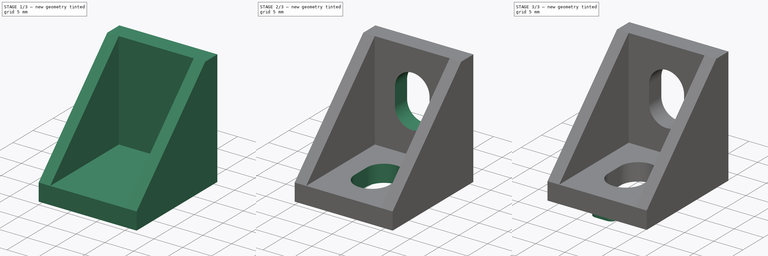
[diagram: build sequence overview — one tinted view per stage of 3, left to right]
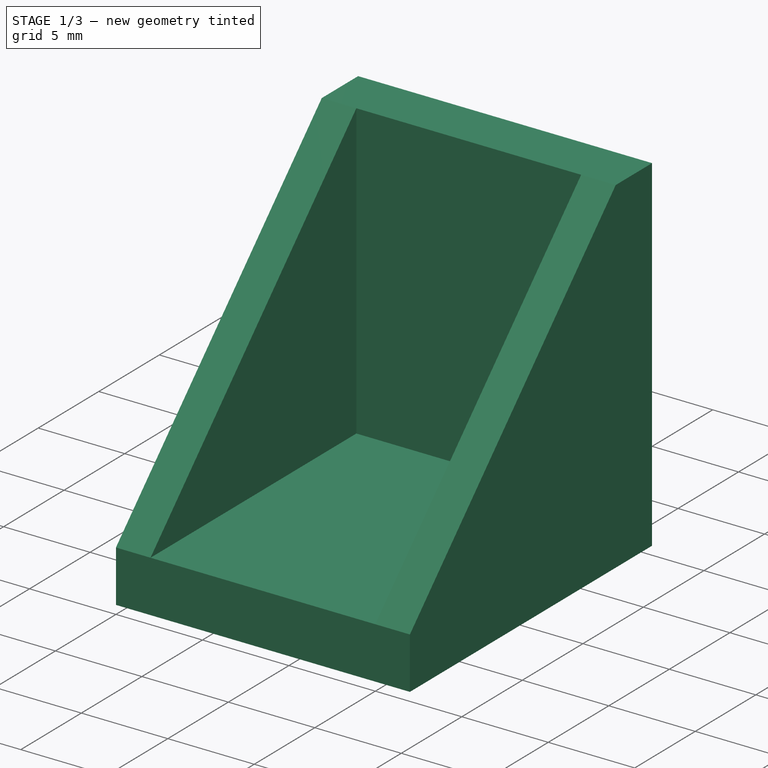
[diagram: stage 1 of 3 — iso view after this stage's code; geometry added in this stage tinted green]
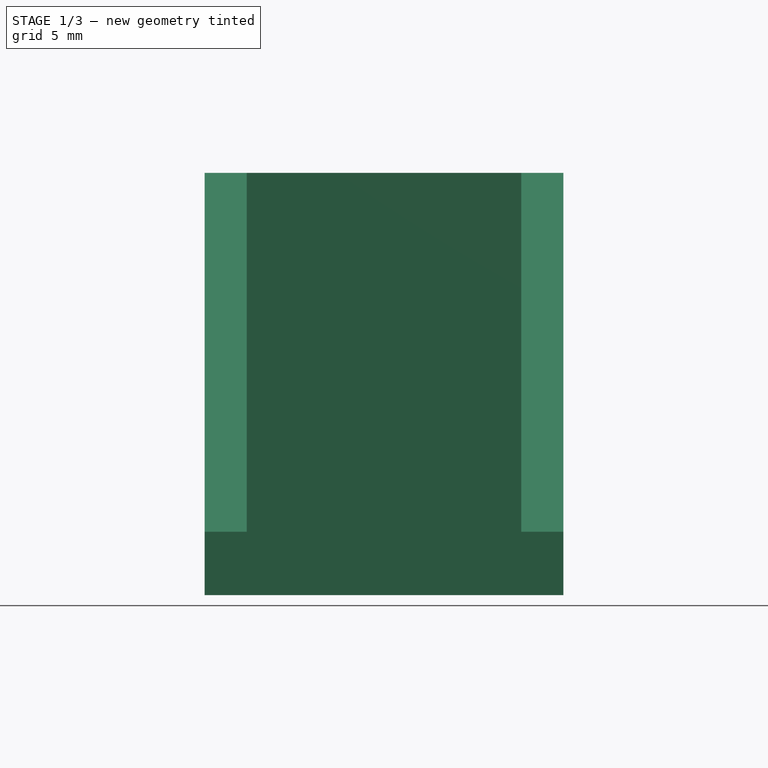
[diagram: stage 1 of 3 — front view after this stage's code; geometry added in this stage tinted green]
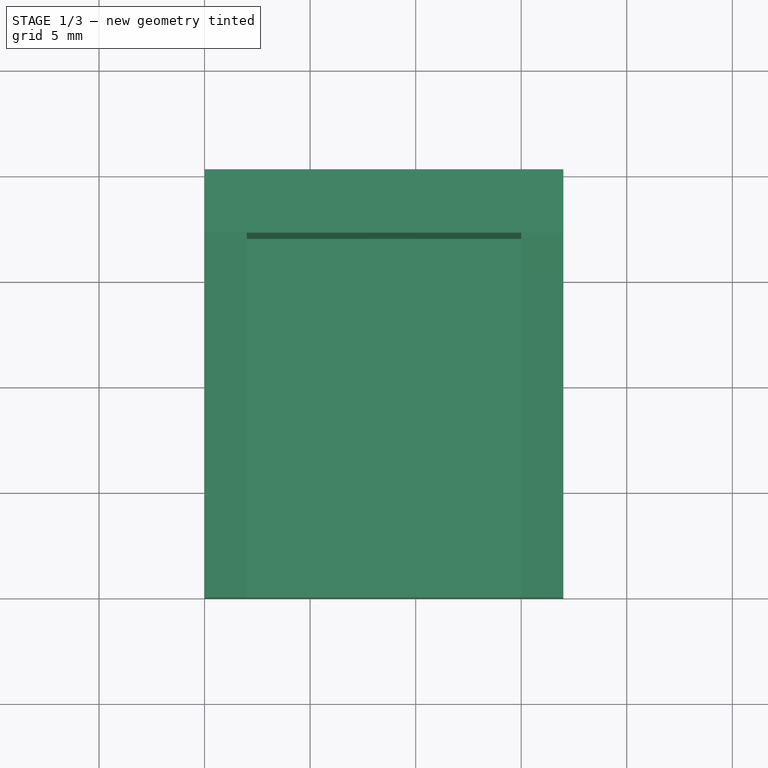
[diagram: stage 1 of 3 — top view after this stage's code; geometry added in this stage tinted green]
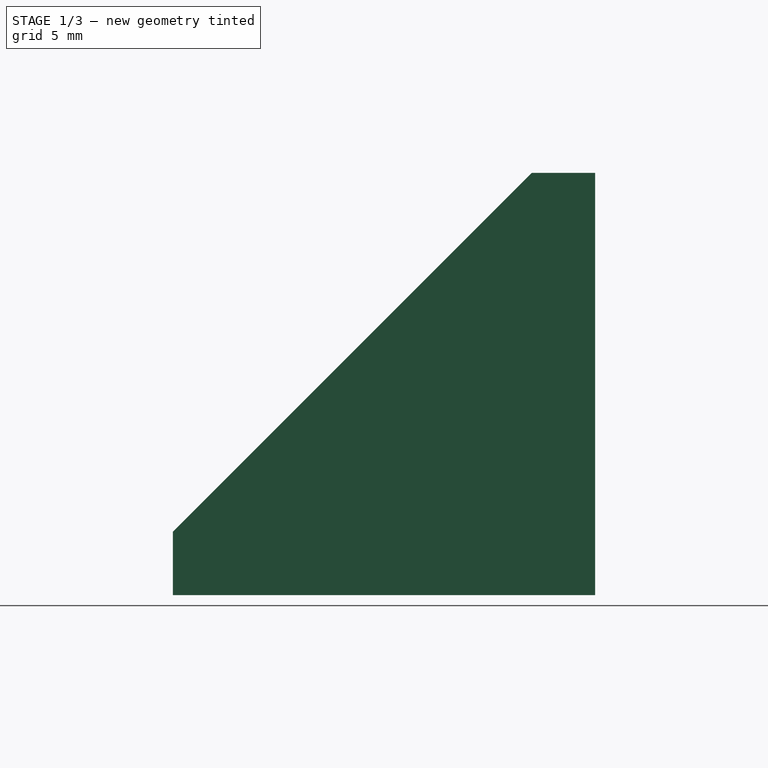
[diagram: stage 1 of 3 — right view after this stage's code; geometry added in this stage tinted green]
FCSTD DOCUMENT  (FreeCAD 0.20R26554 (Git))
Label: 2020_corner_bracket
Comment: This model is licensed under CC-BY 3.0.\n\nDon´t forget to share your modifications with the community.
License: Creative Commons Attribution
LicenseURL: http://creativecommons.org/licenses/by/4.0/
objects: Sketcher::SketchObject×6, PartDesign::Pad×3, PartDesign::Pocket×3, PartDesign::Body×1
note: 19 computed .brp shape members not serialized (recipe doc carries the construction recipe); baked Part::Feature solids carry a one-line shape summary decoded from their .brp

FEATURE [Sketcher::SketchObject] Sketch
  FullyConstrained = true
  MapMode = 5
  Placement = pos=(0,0,0) rot=(0.57735,0.57735,0.57735;2.0944rad)
  Support = -> [YZ_Plane]
  sketch-geometry (5):
    g0: LineSegment StartX=0 StartY=0 StartZ=0 EndX=0 EndY=20 EndZ=0
    g1: LineSegment StartX=0 StartY=20 StartZ=0 EndX=-3 EndY=20 EndZ=0
    g2: LineSegment StartX=-3 StartY=20 StartZ=0 EndX=-20 EndY=3 EndZ=0
    g3: LineSegment StartX=-20 StartY=3 StartZ=0 EndX=-20 EndY=0 EndZ=0
    g4: LineSegment StartX=-20 StartY=0 StartZ=0 EndX=0 EndY=0 EndZ=0
  constraints (14):
    c: Coincident(g-1,g0)
    c: PointOnObject(g0,g-2)
    c: Coincident(g0,g1)
    c: Horizontal(g1)
    c: Coincident(g1,g2)
    c: Coincident(g2,g3)
    c: PointOnObject(g3,g-1)
    c: Vertical(g3)
    c: Coincident(g3,g4)
    c: Coincident(g4,g0)
    c: DistanceY(g0,g0) = 20
    c: DistanceY(g3,g3) = 3
    c: DistanceX(g1,g1) = 3
    c: DistanceX(g4,g4) = 20
FEATURE [PartDesign::Pad] Pad
  Direction = (1,1,1)
  Length = 17
  Length2 = 100
  Placement = pos=(0,0,0) rot=(0.57735,0.57735,0.57735;2.0944rad)
  Profile = -> Sketch
  Type = 0
FEATURE [Sketcher::SketchObject] Sketch001
  ExternalGeometry = -> [Pad]
  FullyConstrained = true
  MapMode = 5
  Placement = pos=(-8.8e-15,-20,4.4e-15) rot=(-0.57735,-0.57735,0.57735;4.18879rad)
  Support = -> [Pad]
  sketch-geometry (4):
    g0: LineSegment StartX=-3 StartY=2 StartZ=0 EndX=-20 EndY=2 EndZ=0
    g1: LineSegment StartX=-20 StartY=2 StartZ=0 EndX=-20 EndY=15 EndZ=0
    g2: LineSegment StartX=-20 StartY=15 StartZ=0 EndX=-3 EndY=15 EndZ=0
    g3: LineSegment StartX=-3 StartY=15 StartZ=0 EndX=-3 EndY=2 EndZ=0
  constraints (12):
    c: Coincident(g0,g1)
    c: Coincident(g1,g2)
    c: Coincident(g2,g3)
    c: Coincident(g3,g0)
    c: Horizontal(g0)
    c: Horizontal(g2)
    c: Vertical(g1)
    c: Vertical(g3)
    c: PointOnObject(g0,g-3)
    c: DistanceY(g1,g-6) = 2
    c: DistanceY(g-6,g0) = 2
    c: PointOnObject(g1,g-6)
FEATURE [PartDesign::Pocket] Pocket
  BaseFeature = -> Pad
  Direction = (1,1,1)
  Length = 17
  Length2 = 100
  Placement = pos=(0,0,0) rot=(0.57735,0.57735,0.57735;2.0944rad)
  Profile = -> Sketch001
  Type = 0
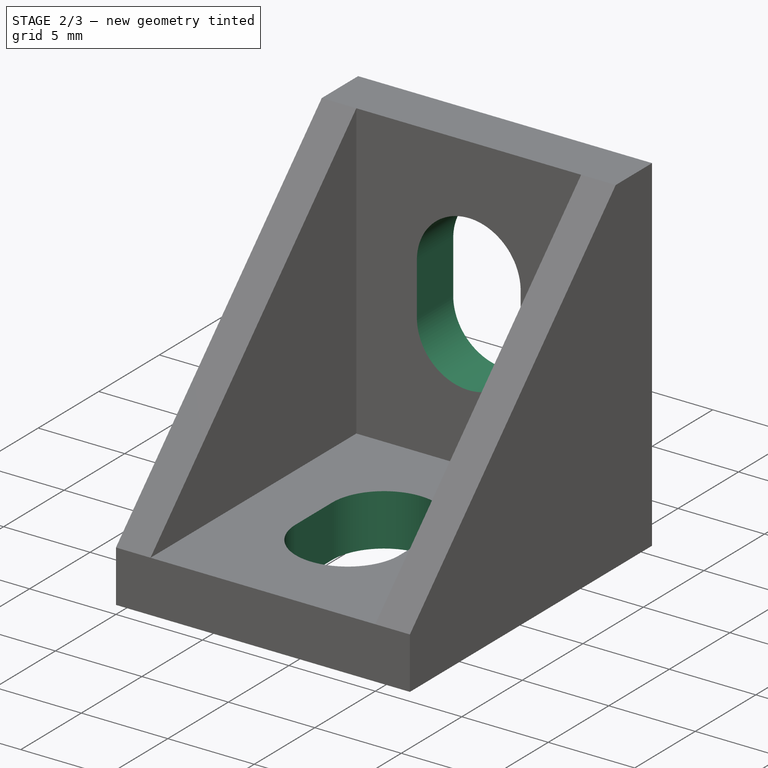
[diagram: stage 2 of 3 — iso view after this stage's code; geometry added in this stage tinted green]
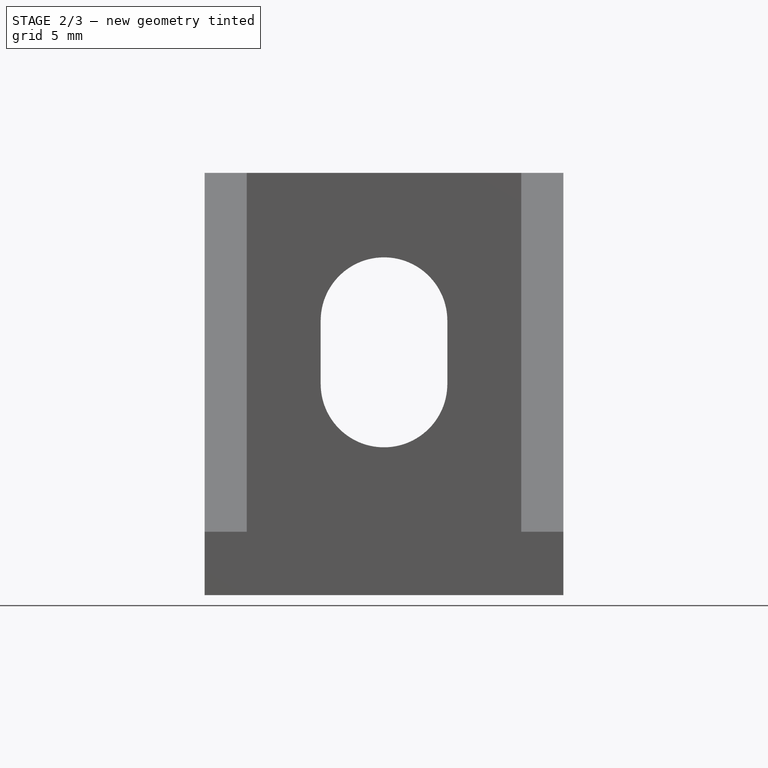
[diagram: stage 2 of 3 — front view after this stage's code; geometry added in this stage tinted green]
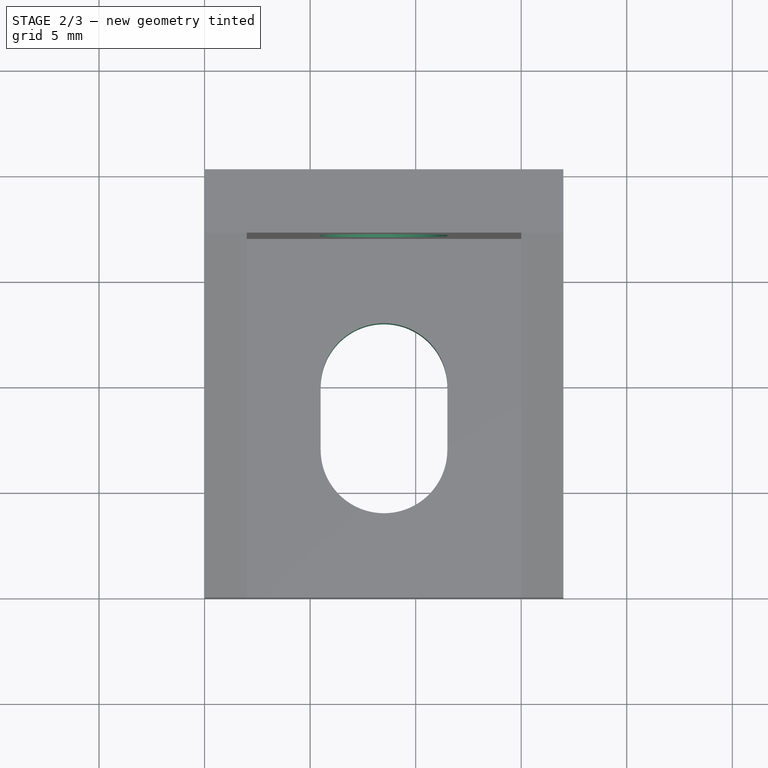
[diagram: stage 2 of 3 — top view after this stage's code; geometry added in this stage tinted green]
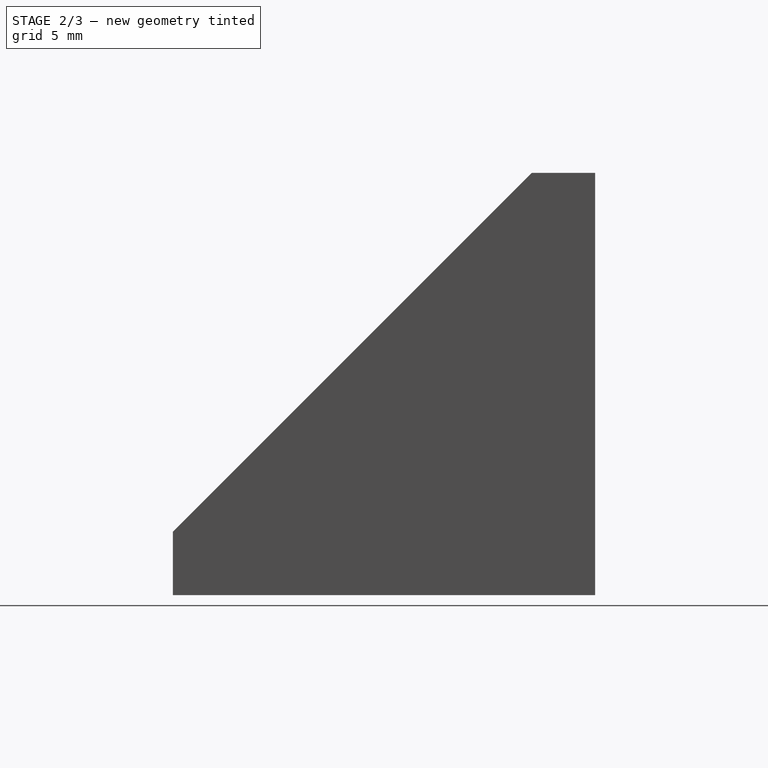
[diagram: stage 2 of 3 — right view after this stage's code; geometry added in this stage tinted green]
FEATURE [Sketcher::SketchObject] Sketch002
  ExternalGeometry = -> [Pocket]
  FullyConstrained = true
  MapMode = 5
  Placement = pos=(-1.7e-15,-3,6e-16) rot=(-0.57735,-0.57735,0.57735;4.18879rad)
  Support = -> [Pocket]
  sketch-geometry (5):
    g0: LineSegment StartX=-20 StartY=8.5 StartZ=0 EndX=-3 EndY=8.5 EndZ=0
    g1: ArcOfCircle CenterX=-10 CenterY=8.5 CenterZ=0 NormalX=0 NormalY=0 NormalZ=1 AngleXU=0 Radius=3 StartAngle=4.71239 EndAngle=7.85398
    g2: ArcOfCircle CenterX=-13 CenterY=8.5 CenterZ=0 NormalX=0 NormalY=0 NormalZ=1 AngleXU=0 Radius=3 StartAngle=1.5708 EndAngle=4.71239
    g3: LineSegment StartX=-10 StartY=11.5 StartZ=0 EndX=-13 EndY=11.5 EndZ=0
    g4: LineSegment StartX=-10 StartY=5.5 StartZ=0 EndX=-13 EndY=5.5 EndZ=0
  constraints (14):
    c: PointOnObject(g0,g-6)
    c: PointOnObject(g0,g-4)
    c: Horizontal(g0)
    c: DistanceY(g0,g-4) = 6.5
    c: Tangent(g1,g4) = 1.5708
    c: Tangent(g1,g3) = -1.5708
    c: Tangent(g3,g2) = -1.5708
    c: Tangent(g4,g2) = 1.5708
    c: Horizontal(g3)
    c: Equal(g1,g2)
    c: PointOnObject(g1,g0)
    c: Radius(g1) = 3
    c: DistanceX(g3,g3) = 3
    c: DistanceX(g0,g2) = 7
FEATURE [PartDesign::Pocket] Pocket001
  BaseFeature = -> Pocket
  Direction = (1,1,1)
  Length = 5
  Length2 = 100
  Placement = pos=(0,0,0) rot=(0.57735,0.57735,0.57735;2.0944rad)
  Profile = -> Sketch002
  Type = 2
FEATURE [Sketcher::SketchObject] Sketch003
  ExternalGeometry = -> [Pocket001]
  FullyConstrained = true
  MapMode = 5
  Placement = pos=(-3e-16,1.2e-15,3) rot=(0,0,-1;1.5708rad)
  Support = -> [Pocket001]
  sketch-geometry (5):
    g0: LineSegment StartX=3 StartY=8.5 StartZ=0 EndX=20 EndY=8.5 EndZ=0
    g1: ArcOfCircle CenterX=10 CenterY=8.5 CenterZ=0 NormalX=0 NormalY=0 NormalZ=1 AngleXU=0 Radius=3 StartAngle=1.5708 EndAngle=4.71239
    g2: ArcOfCircle CenterX=13 CenterY=8.5 CenterZ=0 NormalX=0 NormalY=0 NormalZ=1 AngleXU=0 Radius=3 StartAngle=4.71239 EndAngle=7.85398
    g3: LineSegment StartX=10 StartY=5.5 StartZ=0 EndX=13 EndY=5.5 EndZ=0
    g4: LineSegment StartX=10 StartY=11.5 StartZ=0 EndX=13 EndY=11.5 EndZ=0
  constraints (14):
    c: PointOnObject(g0,g-4)
    c: PointOnObject(g0,g-5)
    c: Horizontal(g0)
    c: DistanceY(g0,g-4) = 6.5
    c: Tangent(g1,g4) = 1.5708
    c: Tangent(g1,g3) = -1.5708
    c: Tangent(g3,g2) = -1.5708
    c: Tangent(g4,g2) = 1.5708
    c: Horizontal(g3)
    c: Equal(g1,g2)
    c: PointOnObject(g1,g0)
    c: Radius(g2) = 3
    c: DistanceX(g4,g4) = 3
    c: DistanceX(g2,g0) = 7
FEATURE [PartDesign::Pocket] Pocket002
  BaseFeature = -> Pocket001
  Direction = (1,1,1)
  Length = 5
  Length2 = 100
  Placement = pos=(0,0,0) rot=(0.57735,0.57735,0.57735;2.0944rad)
  Profile = -> Sketch003
  Type = 2
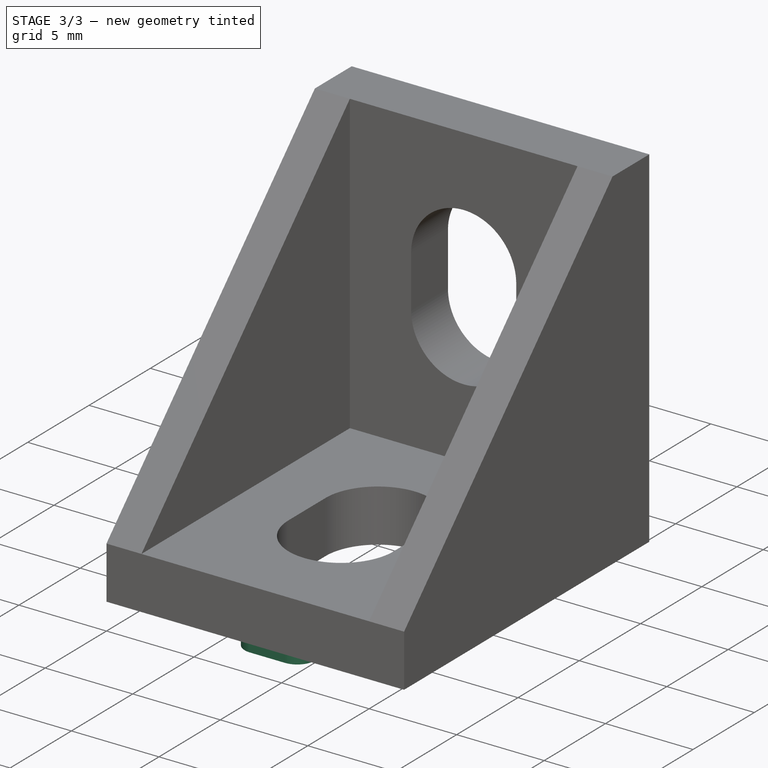
[diagram: stage 3 of 3 — iso view after this stage's code; geometry added in this stage tinted green]
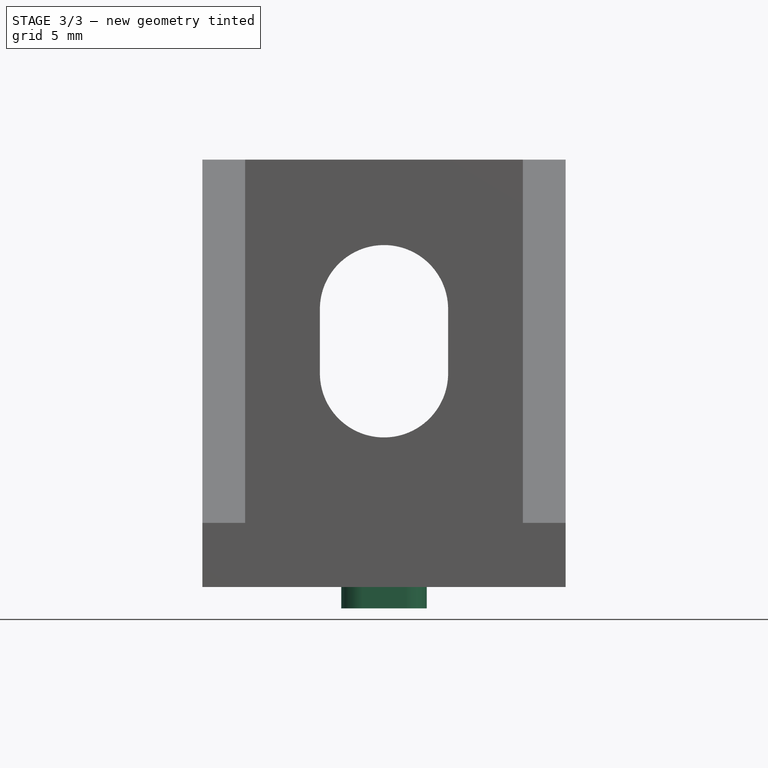
[diagram: stage 3 of 3 — front view after this stage's code; geometry added in this stage tinted green]
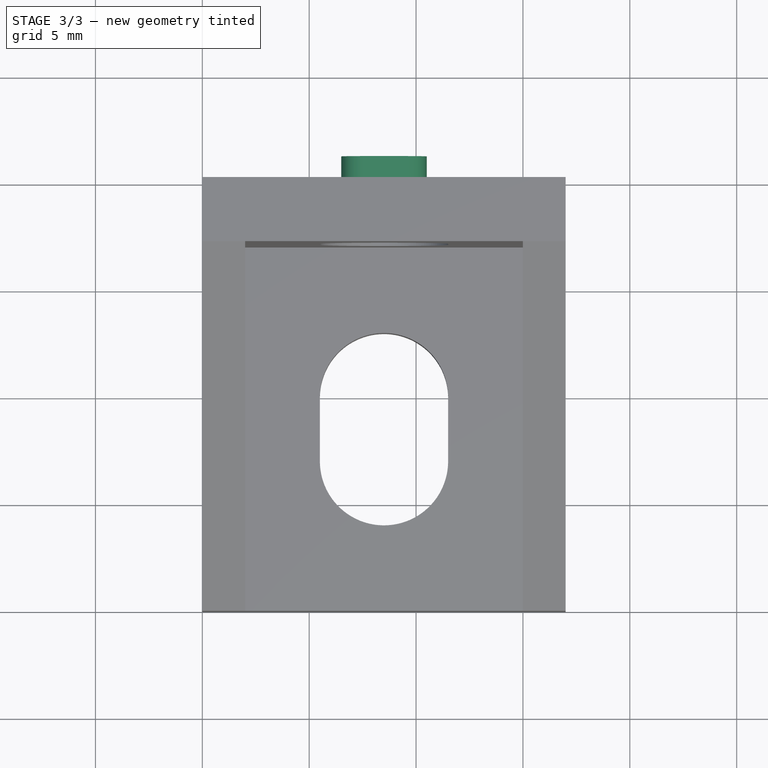
[diagram: stage 3 of 3 — top view after this stage's code; geometry added in this stage tinted green]
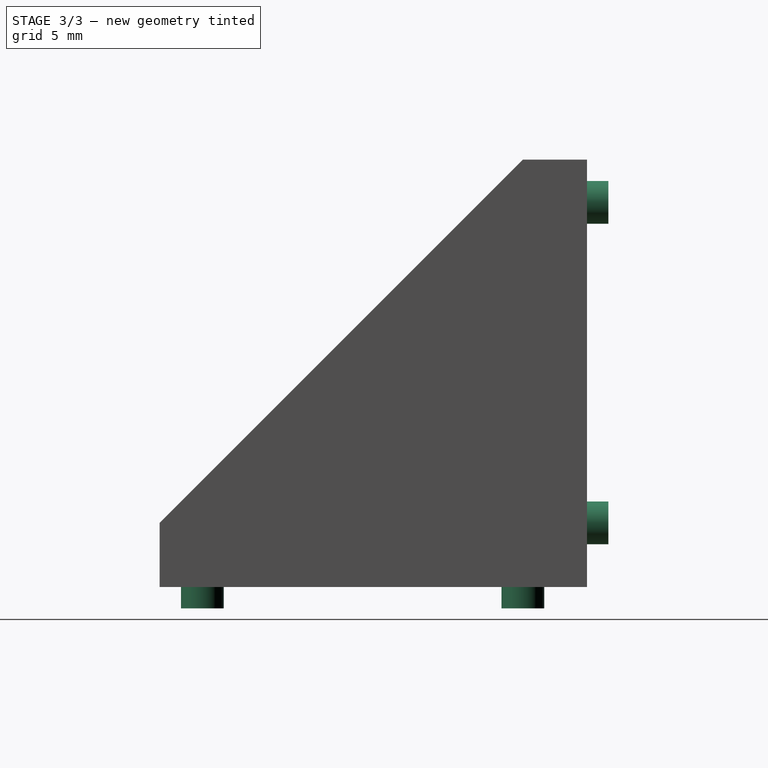
[diagram: stage 3 of 3 — right view after this stage's code; geometry added in this stage tinted green]
FEATURE [Sketcher::SketchObject] Sketch004
  ExternalGeometry = -> [Pocket002]
  FullyConstrained = true
  MapMode = 5
  Placement = pos=(0,0,0) rot=(0.57735,0.57735,0.57735;4.18879rad)
  Support = -> [Pocket002]
  sketch-geometry (9):
    g0: LineSegment StartX=0 StartY=8.5 StartZ=0 EndX=20 EndY=8.5 EndZ=0
    g1: ArcOfCircle CenterX=3 CenterY=9.5 CenterZ=0 NormalX=0 NormalY=0 NormalZ=1 AngleXU=0 Radius=1 StartAngle=0 EndAngle=3.14159
    g2: ArcOfCircle CenterX=3 CenterY=7.5 CenterZ=0 NormalX=0 NormalY=0 NormalZ=1 AngleXU=0 Radius=1 StartAngle=3.14159 EndAngle=6.28319
    g3: LineSegment StartX=2 StartY=9.5 StartZ=0 EndX=2 EndY=7.5 EndZ=0
    g4: LineSegment StartX=4 StartY=9.5 StartZ=0 EndX=4 EndY=7.5 EndZ=0
    g5: ArcOfCircle CenterX=18 CenterY=9.5 CenterZ=0 NormalX=0 NormalY=0 NormalZ=1 AngleXU=0 Radius=1 StartAngle=-9e-16 EndAngle=3.14159
    g6: ArcOfCircle CenterX=18 CenterY=7.5 CenterZ=0 NormalX=0 NormalY=0 NormalZ=1 AngleXU=0 Radius=1 StartAngle=3.14159 EndAngle=6.28319
    g7: LineSegment StartX=17 StartY=9.5 StartZ=0 EndX=17 EndY=7.5 EndZ=0
    g8: LineSegment StartX=19 StartY=9.5 StartZ=0 EndX=19 EndY=7.5 EndZ=0
  constraints (24):
    c: PointOnObject(g0,g-2)
    c: PointOnObject(g0,g-5)
    c: Horizontal(g0)
    c: DistanceY(g0,g-3) = 8.5
    c: Tangent(g1,g4) = 1.5708
    c: Tangent(g1,g3) = -1.5708
    c: Tangent(g3,g2) = -1.5708
    c: Tangent(g4,g2) = 1.5708
    c: Vertical(g3)
    c: Equal(g1,g2)
    c: Tangent(g5,g8) = 1.5708
    c: Tangent(g5,g7) = -1.5708
    c: Tangent(g7,g6) = -1.5708
    c: Tangent(g8,g6) = 1.5708
    c: Vertical(g7)
    c: Equal(g5,g6)
    c: Equal(g1,g5)
    c: Equal(g4,g7)
    c: DistanceY(g4,g4) = 2
    c: Radius(g1) = 1
    c: Horizontal(g5,g1)
    c: DistanceX(g0,g1) = 3
    c: DistanceX(g5,g0) = 2
    c: DistanceY(g0,g1) = 1
FEATURE [PartDesign::Pad] Pad001
  BaseFeature = -> Pocket002
  Direction = (1,1,1)
  Length = 1
  Length2 = 100
  Placement = pos=(0,0,0) rot=(0.57735,0.57735,0.57735;2.0944rad)
  Profile = -> Sketch004
  Type = 0
FEATURE [Sketcher::SketchObject] Sketch005
  ExternalGeometry = -> [Pad001]
  FullyConstrained = true
  MapMode = 5
  Placement = pos=(0,0,1e-16) rot=(0.707107,0.707107,0;3.14159rad)
  Support = -> [Pad001]
  sketch-geometry (9):
    g0: LineSegment StartX=0 StartY=8.5 StartZ=0 EndX=-20 EndY=8.5 EndZ=0
    g1: ArcOfCircle CenterX=-3 CenterY=7.5 CenterZ=0 NormalX=0 NormalY=0 NormalZ=1 AngleXU=0 Radius=1 StartAngle=3.14159 EndAngle=6.28319
    g2: ArcOfCircle CenterX=-3 CenterY=9.5 CenterZ=0 NormalX=0 NormalY=0 NormalZ=1 AngleXU=0 Radius=1 StartAngle=3e-16 EndAngle=3.14159
    g3: LineSegment StartX=-2 StartY=7.5 StartZ=0 EndX=-2 EndY=9.5 EndZ=0
    g4: LineSegment StartX=-4 StartY=7.5 StartZ=0 EndX=-4 EndY=9.5 EndZ=0
    g5: ArcOfCircle CenterX=-18 CenterY=9.5 CenterZ=0 NormalX=0 NormalY=0 NormalZ=1 AngleXU=0 Radius=1 StartAngle=0 EndAngle=3.14159
    g6: ArcOfCircle CenterX=-18 CenterY=7.5 CenterZ=0 NormalX=0 NormalY=0 NormalZ=1 AngleXU=0 Radius=1 StartAngle=3.14159 EndAngle=6.28319
    g7: LineSegment StartX=-19 StartY=9.5 StartZ=0 EndX=-19 EndY=7.5 EndZ=0
    g8: LineSegment StartX=-17 StartY=9.5 StartZ=0 EndX=-17 EndY=7.5 EndZ=0
  constraints (24):
    c: PointOnObject(g0,g-2)
    c: PointOnObject(g0,g-4)
    c: Horizontal(g0)
    c: DistanceY(g0,g-3) = 8.5
    c: Tangent(g1,g4) = 1.5708
    c: Tangent(g1,g3) = -1.5708
    c: Tangent(g3,g2) = -1.5708
    c: Tangent(g4,g2) = 1.5708
    c: Vertical(g3)
    c: Equal(g1,g2)
    c: Radius(g2) = 1
    c: DistanceY(g4,g4) = 2
    c: DistanceY(g0,g2) = 1
    c: DistanceX(g2,g0) = 3
    c: Tangent(g5,g8) = 1.5708
    c: Tangent(g5,g7) = -1.5708
    c: Tangent(g7,g6) = -1.5708
    c: Tangent(g8,g6) = 1.5708
    c: Vertical(g7)
    c: Equal(g5,g6)
    c: Equal(g5,g2)
    c: Equal(g8,g4)
    c: Horizontal(g5,g2)
    c: DistanceX(g0,g5) = 2
FEATURE [PartDesign::Pad] Pad002
  BaseFeature = -> Pad001
  Direction = (1,1,1)
  Length = 1
  Length2 = 100
  Placement = pos=(0,0,0) rot=(0.57735,0.57735,0.57735;2.0944rad)
  Profile = -> Sketch005
  Type = 0
FEATURE [PartDesign::Body] Body  label="Corner"
  Group = -> [Sketch,Pad,Sketch001,Pocket,Sketch002,Pocket001,Sketch003,Pocket002,Sketch004,Pad001,Sketch005,Pad002]
  Origin = -> Origin
  Tip = -> Pad002
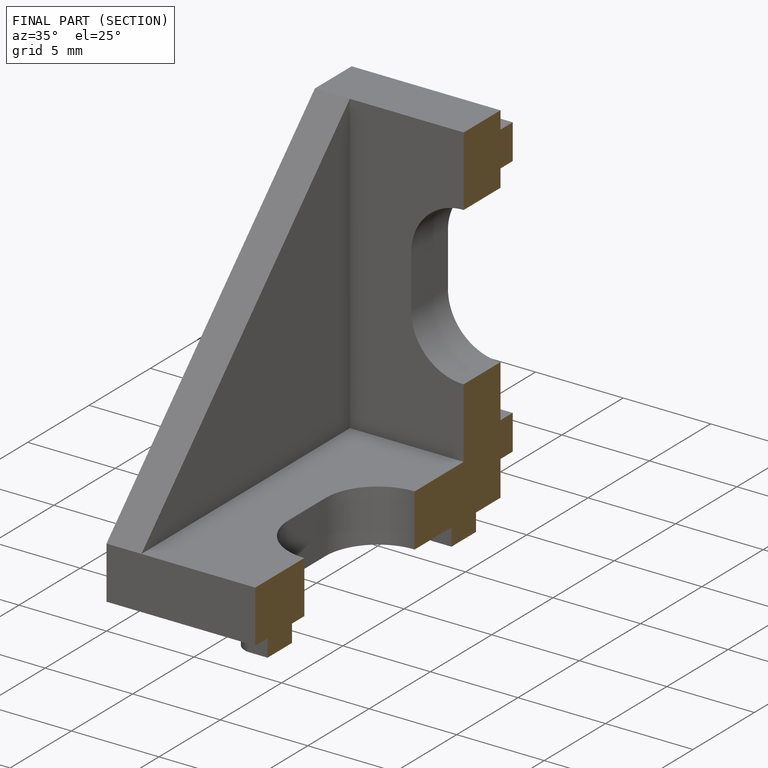
[diagram: finished part — half-section view (interior)]
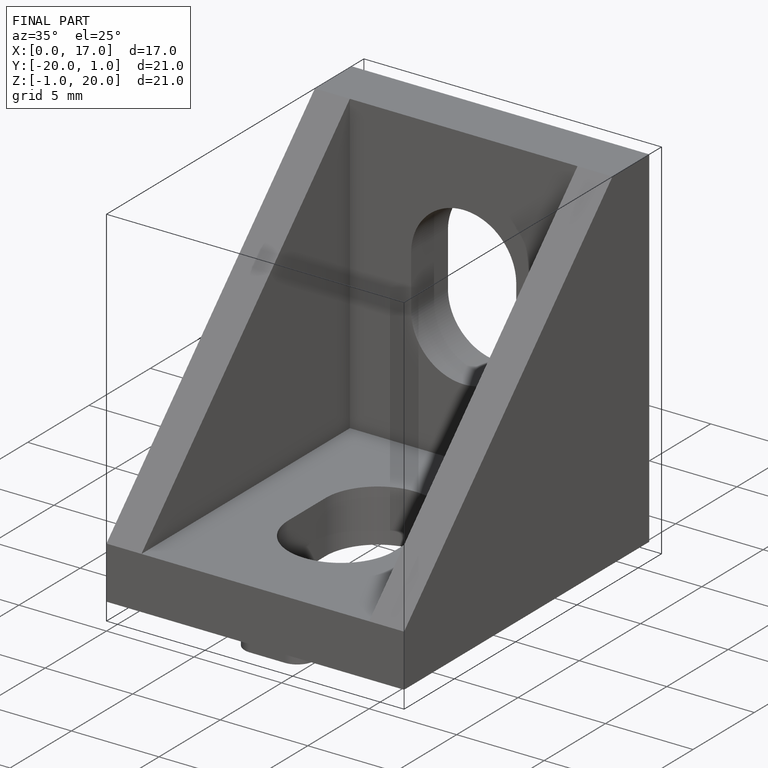
[diagram: finished part — iso view with bounding-box wireframe]
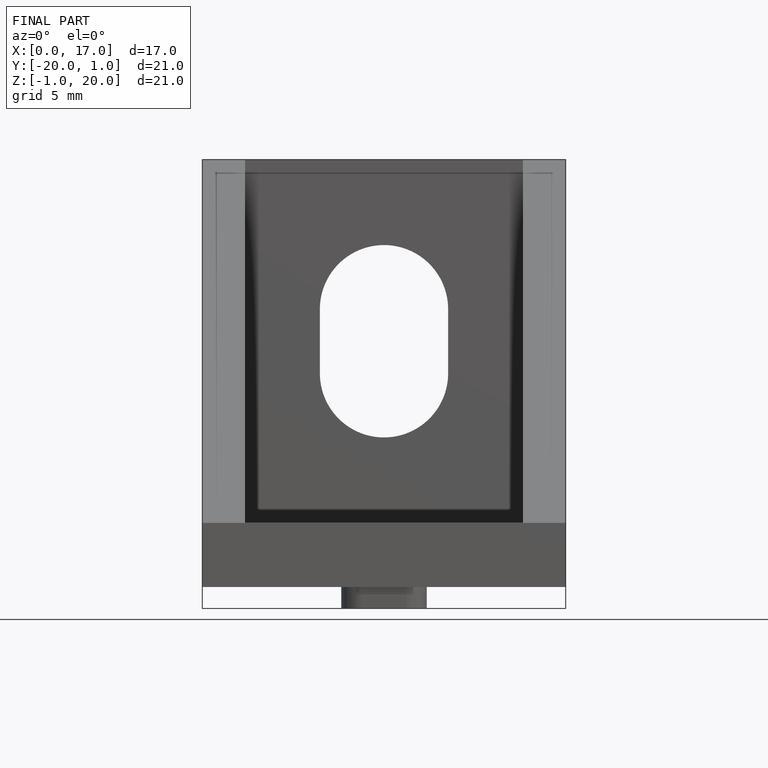
[diagram: finished part — front view with bounding-box wireframe]
